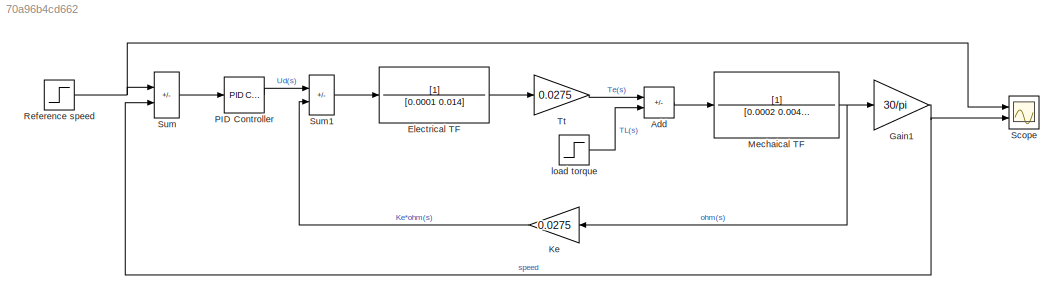
MODEL slx_70a96b4cd662
KIND model
CONFIG AbsTol = auto
CONFIG EnableMultiTasking = off
CONFIG FixedStep = auto
CONFIG MaxStep = auto
CONFIG MinStep = auto
CONFIG RelTol = 1e-3
CONFIG SampleTimeConstraint = Unconstrained
CONFIG Solver = VariableStepAuto
CONFIG SolverName = VariableStepAuto
CONFIG StartTime = 0.0
CONFIG StopTime = 10.0
BLOCK [Sum] Add
  IconShape = rectangular
  Inputs = +-
  Ports = [2, 1]
BLOCK [TransferFcn] Electrical TF
  Denominator = [0.0001 0.014]
BLOCK [Gain] Gain1
  Gain = 30/pi
BLOCK [Gain] Ke
  Gain = 0.0275
BLOCK [TransferFcn] Mechaical TF
  Denominator = [0.0002 0.004586]
BLOCK [Reference] PID Controller  REF=simulink/Continuous/PID Controller
  Ports = [1, 1]
  SourceBlock = simulink/Continuous/PID Controller
  SourceProductBaseCode = SL
  SourceType = PID 1dof
BLOCK [Step] Reference speed
  After = 1500
  SampleTime = 0
BLOCK [Scope] Scope
  Floating = off
  NumInputPorts = 2
  Ports = [2]
  ScopeSpecificationString = Simulink.scopes.TimeScopeBlockCfg('CurrentConfiguration', extmgr.ConfigurationSet(extmgr.Configuration('Core','General UI',true),extmgr.Configuration('Core','Source UI',true),extmgr.Configuration('Sources','WiredSimulink',true),extmgr.Configuration('Visuals','Time Domain',true,'SerializedDisplays',{struct('MinYLimReal','-187.5','MaxYLimReal','1687.5','YLabelReal','','MinYLimMag',' 0.00000','MaxYLi...<+2001ch>
BLOCK [Sum] Sum
  IconShape = rectangular
  Inputs = |+-
  Ports = [2, 1]
BLOCK [Sum] Sum1
  IconShape = rectangular
  Inputs = |+-
  Ports = [2, 1]
BLOCK [Gain] Tt
  Gain = 0.0275
  NameLocation = top
BLOCK [Step] load torque
  SampleTime = 0
LINE Add:1 -> Mechaical TF:1
LINE Electrical TF:1 -> Tt:1
NET Gain1:1 -> Scope:2, Sum:2
LINE Ke:1 -> Sum1:2
NET Mechaical TF:1 -> Gain1:1, Ke:1
LINE PID Controller:1 -> Sum1:1
NET Reference speed:1 -> Scope:1, Sum:1
LINE Sum1:1 -> Electrical TF:1
LINE Sum:1 -> PID Controller:1
LINE Tt:1 -> Add:1
LINE load torque:1 -> Add:2
note: NET lines group one-source signal fan-out (src -> all destinations, sorted); 1:1 wires keep LINE
